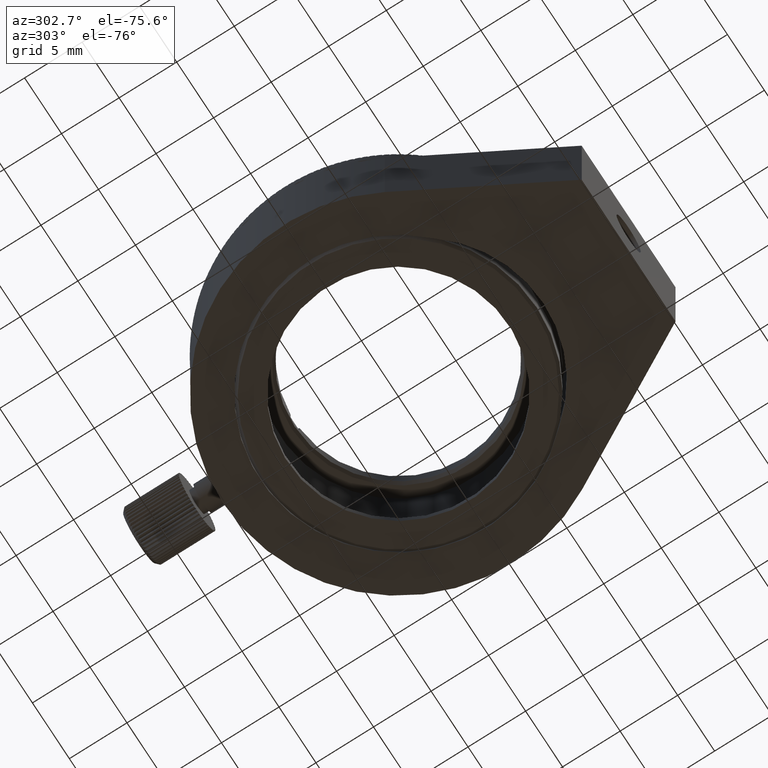
[diagram: clean part render]
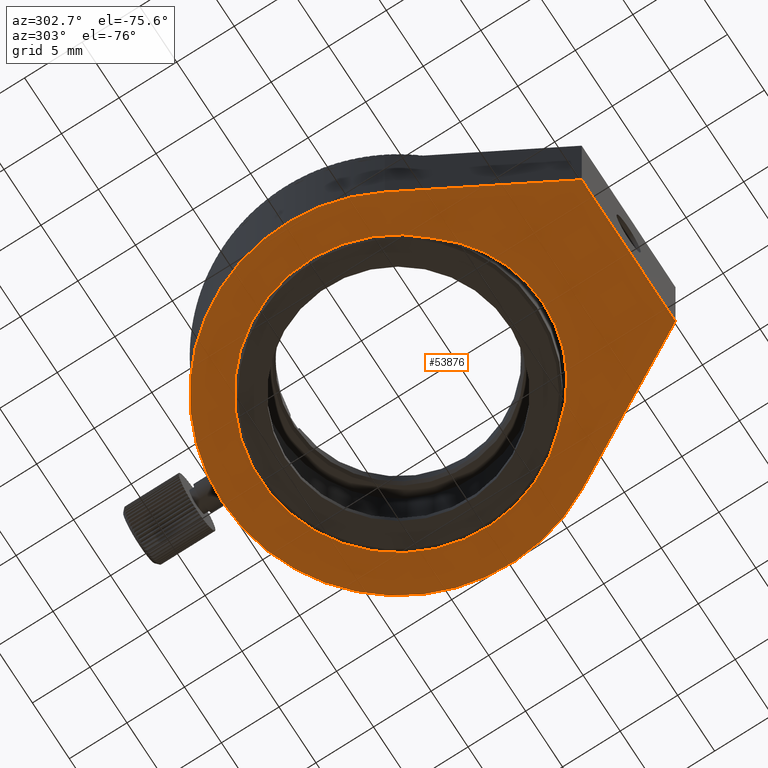
[diagram: same view with one face highlighted and labeled with its STEP entity id]
A machine part, auxiliary view. The second image highlights one B-rep face of the part: STEP entity #53876.
In plain terms, the highlighted planar face has unit normal (0, 0, 1).
Its self-contained STEP definition (entity closure, byte-faithful):
#2880 = DIRECTION ( 'NONE',  ( 0.000000000000000000, -0.000000000000000000, 1.000000000000000000 ) ) ;
#3073 = ORIENTED_EDGE ( 'NONE', *, *, #29918, .T. ) ;
#3487 = DIRECTION ( 'NONE',  ( 0.4848079488252942659, 0.000000000000000000, 0.8746206336211207466 ) ) ;
#3548 = PLANE ( 'NONE',  #40528 ) ;
#4938 = CIRCLE ( 'NONE', #31284, 10.80643872127846983 ) ;
#7940 = DIRECTION ( 'NONE',  ( 0.000000000000000000, 1.000000000000000000, 0.000000000000000000 ) ) ;
#8020 = DIRECTION ( 'NONE',  ( 0.000000000000000000, 1.000000000000000000, 0.000000000000000000 ) ) ;
#9755 = CIRCLE ( 'NONE', #24042, 12.00000000000000178 ) ;
#9920 = EDGE_LOOP ( 'NONE', ( #18825, #3073, #27572 ) ) ;
#10756 = VERTEX_POINT ( 'NONE', #45781 ) ;
#10854 = ORIENTED_EDGE ( 'NONE', *, *, #15385, .F. ) ;
#12041 = VERTEX_POINT ( 'NONE', #40482 ) ;
#12429 = DIRECTION ( 'NONE',  ( 0.000000000000000000, 0.000000000000000000, 1.000000000000000000 ) ) ;
#12642 = ORIENTED_EDGE ( 'NONE', *, *, #51731, .F. ) ;
#12684 = CARTESIAN_POINT ( 'NONE',  ( 0.000000000000000000, 0.000000000000000000, -15.25000000000000355 ) ) ;
#13130 = VERTEX_POINT ( 'NONE', #27745 ) ;
#13513 = FACE_BOUND ( 'NONE', #9920, .T. ) ;
#13641 = EDGE_CURVE ( 'NONE', #12041, #23268, #19212, .T. ) ;
#15385 = EDGE_CURVE ( 'NONE', #56007, #25491, #66777, .T. ) ;
#16115 = DIRECTION ( 'NONE',  ( 0.000000000000000000, 0.000000000000000000, 1.000000000000000000 ) ) ;
#17200 = EDGE_CURVE ( 'NONE', #10756, #13130, #4938, .T. ) ;
#18825 = ORIENTED_EDGE ( 'NONE', *, *, #55672, .T. ) ;
#19212 = LINE ( 'NONE', #40171, #26208 ) ;
#20882 = AXIS2_PLACEMENT_3D ( 'NONE', #32601, #36747, #16115 ) ;
#22965 = CARTESIAN_POINT ( 'NONE',  ( 1.734723475976807094E-15, 0.000000000000000000, 1.793561278721534480 ) ) ;
#23268 = VERTEX_POINT ( 'NONE', #29614 ) ;
#23937 = EDGE_CURVE ( 'NONE', #25491, #12041, #34427, .T. ) ;
#24016 = EDGE_LOOP ( 'NONE', ( #12642, #37613, #46428, #42143, #10854 ) ) ;
#24042 = AXIS2_PLACEMENT_3D ( 'NONE', #59506, #7940, #12429 ) ;
#25491 = VERTEX_POINT ( 'NONE', #56334 ) ;
#26208 = VECTOR ( 'NONE', #61131, 1000.000000000000000 ) ;
#27572 = ORIENTED_EDGE ( 'NONE', *, *, #17200, .T. ) ;
#27745 = CARTESIAN_POINT ( 'NONE',  ( 8.485281374238597962, 0.000000000000000000, 8.485281374238544672 ) ) ;
#28571 = VECTOR ( 'NONE', #3487, 1000.000000000000114 ) ;
#29614 = CARTESIAN_POINT ( 'NONE',  ( 6.350000000000002309, 0.000000000000000000, 20.00000000000000000 ) ) ;
#29918 = EDGE_CURVE ( 'NONE', #40842, #10756, #34032, .T. ) ;
#31195 = AXIS2_PLACEMENT_3D ( 'NONE', #43002, #58455, #52614 ) ;
#31284 = AXIS2_PLACEMENT_3D ( 'NONE', #22965, #38449, #50416 ) ;
#32601 = CARTESIAN_POINT ( 'NONE',  ( 1.734723475976807094E-15, 0.000000000000000000, 1.793561278721534480 ) ) ;
#33244 = DIRECTION ( 'NONE',  ( 0.000000000000000000, 0.000000000000000000, 1.000000000000000000 ) ) ;
#34032 = CIRCLE ( 'NONE', #20882, 10.80643872127846983 ) ;
#34427 = LINE ( 'NONE', #45742, #28571 ) ;
#36747 = DIRECTION ( 'NONE',  ( 0.000000000000000000, 1.000000000000000000, 0.000000000000000000 ) ) ;
#37613 = ORIENTED_EDGE ( 'NONE', *, *, #66518, .F. ) ;
#38449 = DIRECTION ( 'NONE',  ( 0.000000000000000000, 1.000000000000000000, 0.000000000000000000 ) ) ;
#40171 = CARTESIAN_POINT ( 'NONE',  ( -6.349999999999996980, 0.000000000000000000, 20.00000000000000000 ) ) ;
#40482 = CARTESIAN_POINT ( 'NONE',  ( -6.349999999999996980, 0.000000000000000000, 20.00000000000000000 ) ) ;
#40528 = AXIS2_PLACEMENT_3D ( 'NONE', #61611, #8020, #2880 ) ;
#40842 = VERTEX_POINT ( 'NONE', #59012 ) ;
#42143 = ORIENTED_EDGE ( 'NONE', *, *, #23937, .F. ) ;
#42477 = DIRECTION ( 'NONE',  ( 0.4848079488252940439, -0.000000000000000000, -0.8746206336211208576 ) ) ;
#43002 = CARTESIAN_POINT ( 'NONE',  ( 0.000000000000000000, 0.000000000000000000, 0.000000000000000000 ) ) ;
#43559 = DIRECTION ( 'NONE',  ( 0.000000000000000000, 1.000000000000000000, 0.000000000000000000 ) ) ;
#44235 = CARTESIAN_POINT ( 'NONE',  ( 0.000000000000000000, 0.000000000000000000, 0.000000000000000000 ) ) ;
#45742 = CARTESIAN_POINT ( 'NONE',  ( -13.33796466272209358, 0.000000000000000000, 7.393321219585737403 ) ) ;
#45781 = CARTESIAN_POINT ( 'NONE',  ( 1.734723475976807094E-15, 0.000000000000000000, 12.60000000000000320 ) ) ;
#46214 = CARTESIAN_POINT ( 'NONE',  ( 13.33796466272209713, 0.000000000000000000, 7.393321219585733850 ) ) ;
#46428 = ORIENTED_EDGE ( 'NONE', *, *, #13641, .F. ) ;
#49210 = AXIS2_PLACEMENT_3D ( 'NONE', #44235, #43559, #33244 ) ;
#50416 = DIRECTION ( 'NONE',  ( 0.000000000000000000, 0.000000000000000000, 1.000000000000000000 ) ) ;
#51731 = EDGE_CURVE ( 'NONE', #53095, #56007, #60816, .T. ) ;
#52614 = DIRECTION ( 'NONE',  ( 0.000000000000000000, 0.000000000000000000, 1.000000000000000000 ) ) ;
#53095 = VERTEX_POINT ( 'NONE', #46214 ) ;
#53876 = ADVANCED_FACE ( 'NONE', ( #13513, #67112 ), #3548, .F. ) ;
#55672 = EDGE_CURVE ( 'NONE', #13130, #40842, #9755, .T. ) ;
#56007 = VERTEX_POINT ( 'NONE', #12684 ) ;
#56334 = CARTESIAN_POINT ( 'NONE',  ( -13.33796466272209358, 0.000000000000000000, 7.393321219585737403 ) ) ;
#58455 = DIRECTION ( 'NONE',  ( 0.000000000000000000, 1.000000000000000000, 0.000000000000000000 ) ) ;
#59012 = CARTESIAN_POINT ( 'NONE',  ( -8.485281374238580199, 0.000000000000000000, 8.485281374238562435 ) ) ;
#59506 = CARTESIAN_POINT ( 'NONE',  ( 0.000000000000000000, 0.000000000000000000, 0.000000000000000000 ) ) ;
#59702 = VECTOR ( 'NONE', #42477, 1000.000000000000114 ) ;
#60816 = CIRCLE ( 'NONE', #31195, 15.25000000000000355 ) ;
#61131 = DIRECTION ( 'NONE',  ( 1.000000000000000000, 0.000000000000000000, 0.000000000000000000 ) ) ;
#61611 = CARTESIAN_POINT ( 'NONE',  ( 0.000000000000000000, 0.000000000000000000, 0.000000000000000000 ) ) ;
#62090 = CARTESIAN_POINT ( 'NONE',  ( 13.33796466272209713, 0.000000000000000000, 7.393321219585733850 ) ) ;
#66518 = EDGE_CURVE ( 'NONE', #23268, #53095, #67254, .T. ) ;
#66777 = CIRCLE ( 'NONE', #49210, 15.25000000000000355 ) ;
#67112 = FACE_OUTER_BOUND ( 'NONE', #24016, .T. ) ;
#67254 = LINE ( 'NONE', #62090, #59702 ) ;